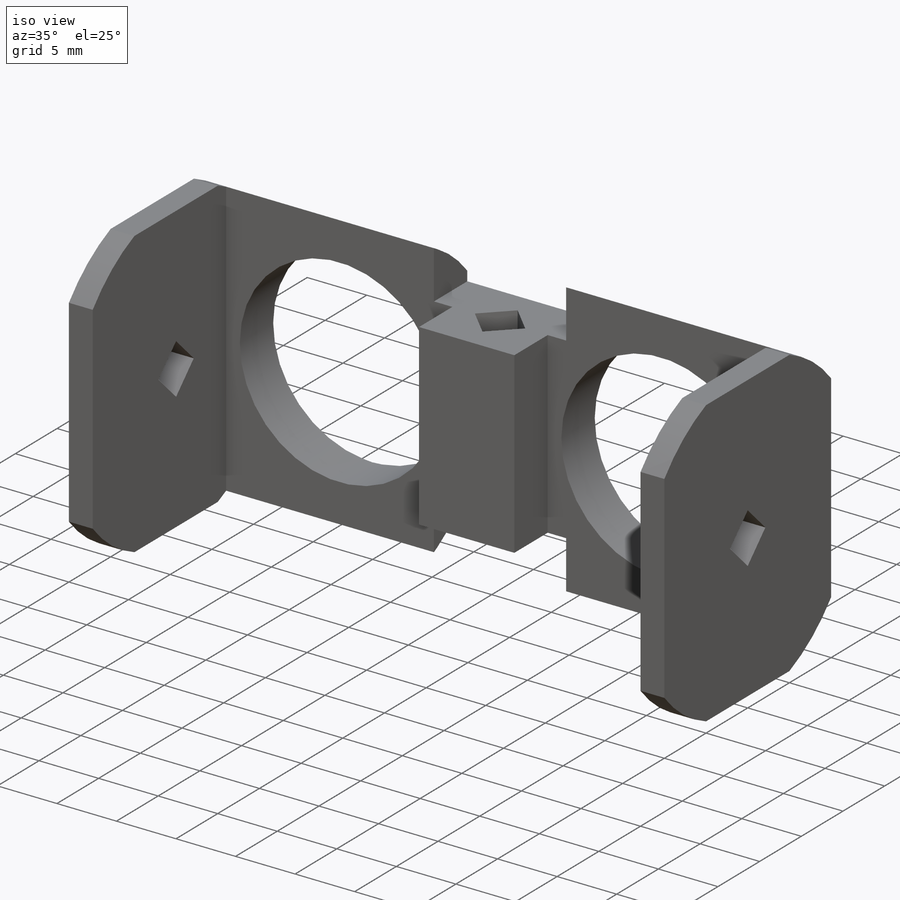
[diagram: iso view]
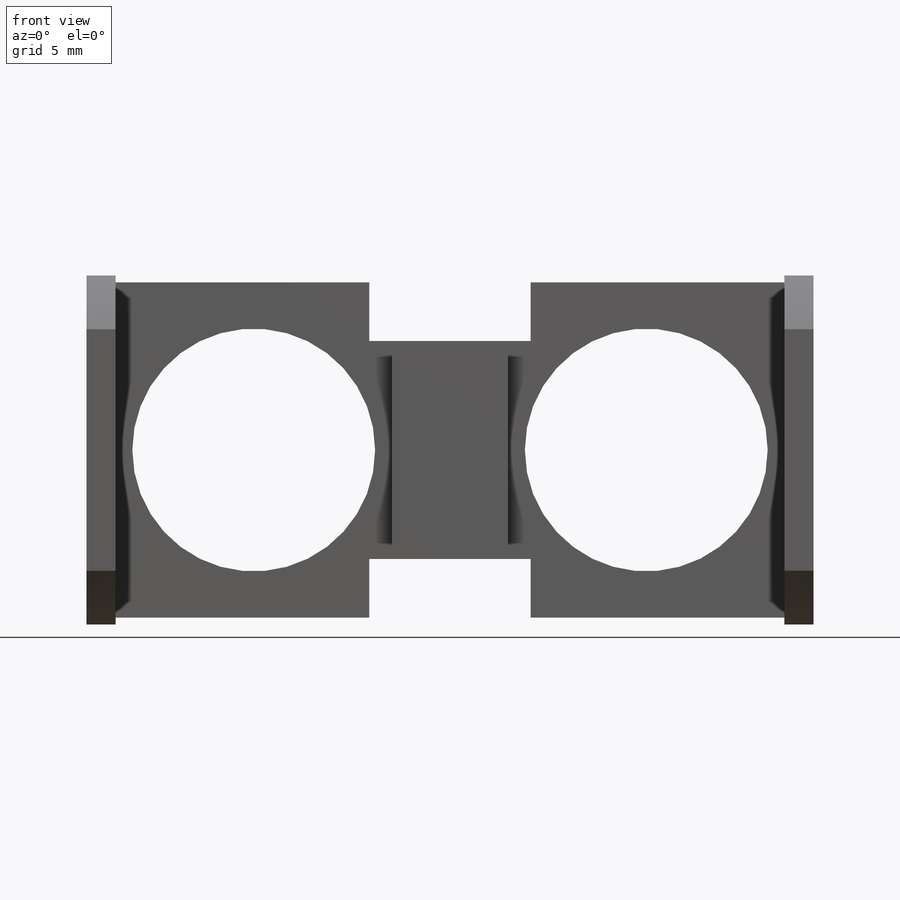
[diagram: front view]
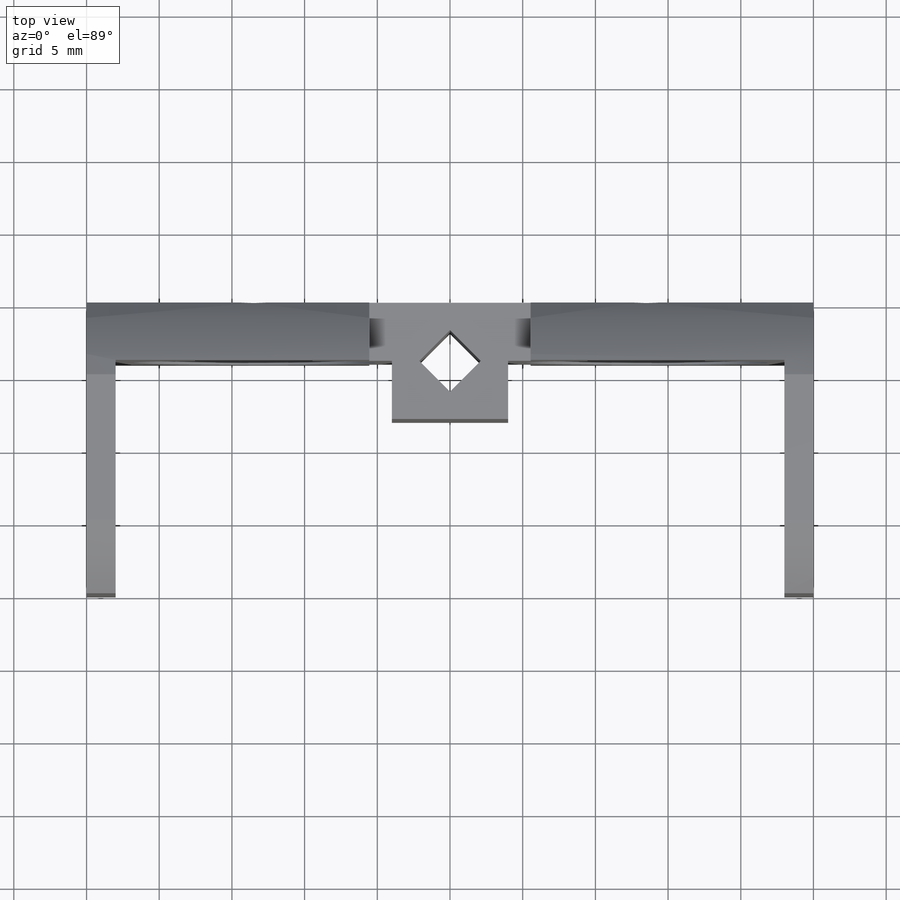
[diagram: top view]
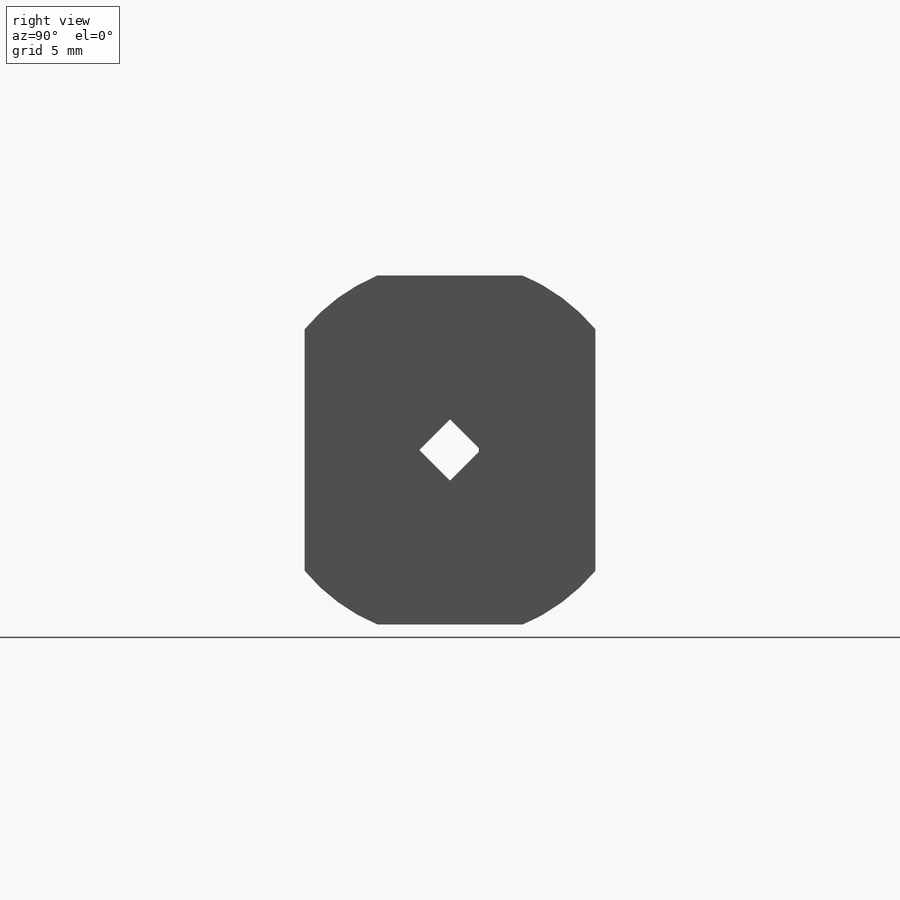
[diagram: right view]
SOLIDWORKS PART (.sldprt)
format: sldprt  version: not decoded by parser v0  size: 314,368 bytes
history: native  units: mm
features: sketch x7, plane x3, extrude x3, cut_extrude x3, material x1, mirror x1 (+10 scaffold rows collapsed)
feature tree (28):
  scaffold x10  (default folders/planes/origin — collapsed)
  material  "Material <não especificado>"
  plane  "Plano frontal"
  plane  "Plano superior"
  plane  "Plano direito"
  sketch  "Esboço2"  dims[D1=0.0mm]
  sketch  "Model"  dims[D1=~0.246272mm]
  extrude  "Ressalto-extrusão2"  Depth=4mm
  sketch  "Esboço5"  dims[c1.D1=24.0mm c1.D2=0.0mm c2.D1=~24.557169mm c2.D2=~4.652281mm c3.D1=2.0mm]
  extrude  "Ressalto-extrusão3"  Depth=20mm
  sketch  "Esboço6"  dims[D1=32.5731mm]
  cut_extrude  "Corte-extrusão1"  [1 undecoded]
  sketch  "Esboço8"  dims[c1.D1=~5.927692mm c1.D2=4.23mm c2.D1=~3.599515mm c2.D2=~2.991062mm c3.D1=8.0]
  cut_extrude  "Corte-extrusão2"  [1 undecoded]
  mirror  "Espelhar1"
  sketch  "Esboço9"  dims[D1=4.0mm]
  extrude  "Ressalto-extrusão4"  Depth=4mm
  sketch  "Esboço10"  dims[c1.D2=~9.962673mm c1.D1=1.5mm c2.D2=~9.652879mm c2.D1=8.0]
  cut_extrude  "Corte-extrusão3"  [1 undecoded]
decode coverage: 10 of 14 modeling features carry decoded parameters
note: ~ marks probable driven/reference dimensions
note: 3 parameter values undecoded
summary: no parameter record found for 3 features
note: suppression state not decoded; provenance and decode notes live in map.json
